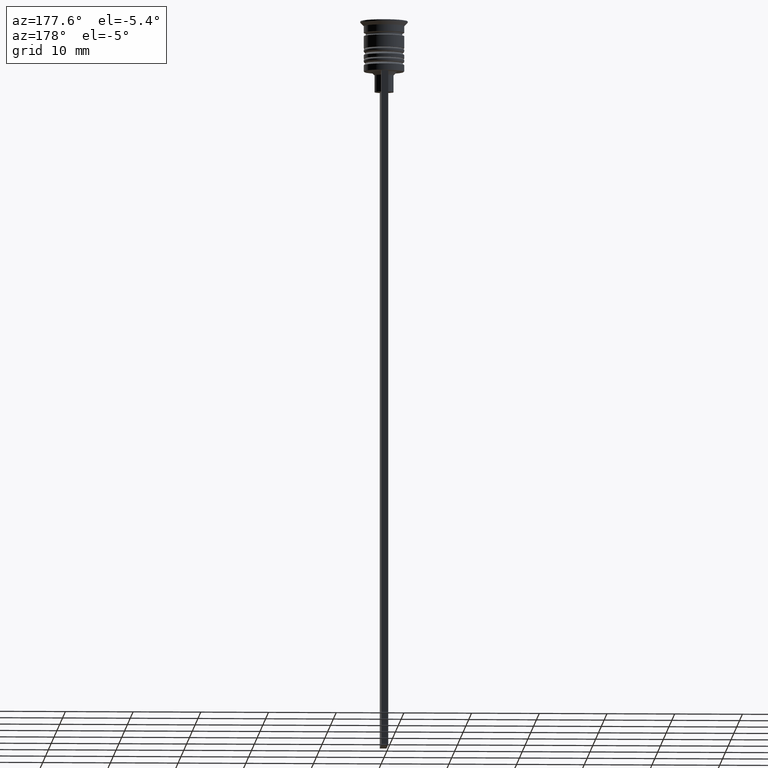
[diagram: clean part render]
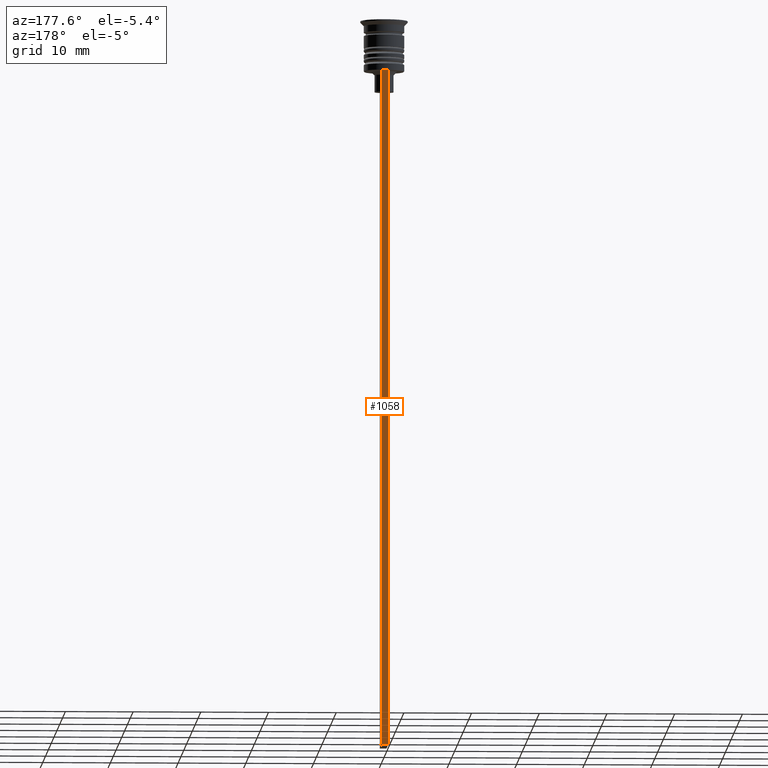
[diagram: same view with one face highlighted and labeled with its STEP entity id]
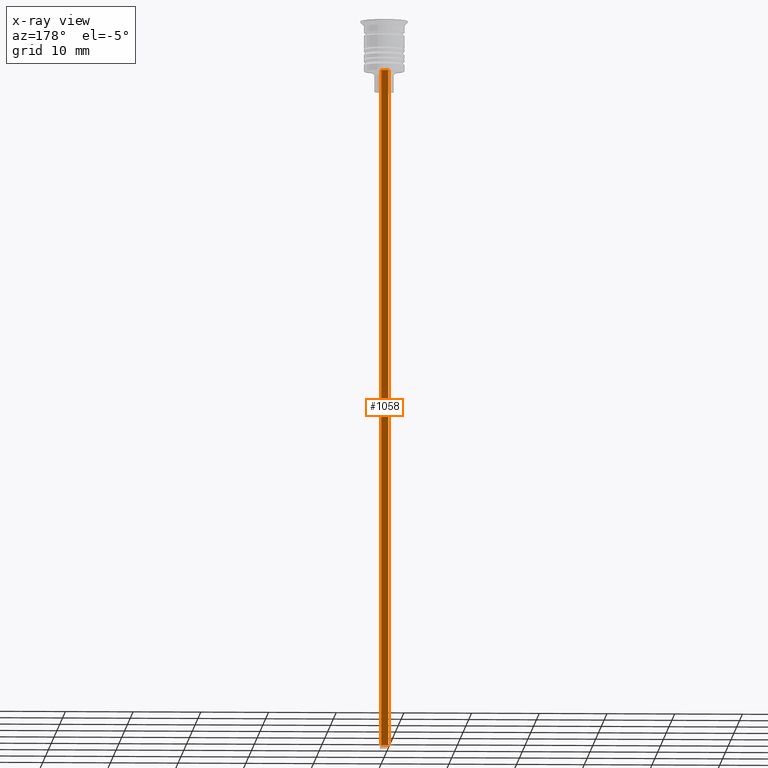
[diagram: x-ray of the same camera — body ghosted, the highlighted face saturated]
A machine part, auxiliary view. The second image highlights one B-rep face of the part: STEP entity #1058.
The next image is the same camera in x-ray: the body ghosted, the highlighted face saturated — about 0% of this face is hidden behind the body in this view.
In plain terms, the highlighted planar face has unit normal (0, -1, -0).
Its self-contained STEP definition (entity closure, byte-faithful):
#75 = CARTESIAN_POINT ( 'NONE',  ( 0.4999999999999998890, 3.000000000000000000, -1.417237469701779329 ) ) ;
#81 = EDGE_LOOP ( 'NONE', ( #487, #2272, #217, #443 ) ) ;
#90 = VECTOR ( 'NONE', #1664, 1000.000000000000000 ) ;
#115 = VERTEX_POINT ( 'NONE', #597 ) ;
#117 = CARTESIAN_POINT ( 'NONE',  ( 0.4999999999999998890, 3.000000000000000000, -7.500000000000000000 ) ) ;
#181 = CARTESIAN_POINT ( 'NONE',  ( 0.4999999999999998890, 3.000000000000000000, -1.417237469701779329 ) ) ;
#217 = ORIENTED_EDGE ( 'NONE', *, *, #867, .T. ) ;
#284 = VECTOR ( 'NONE', #697, 1000.000000000000000 ) ;
#443 = ORIENTED_EDGE ( 'NONE', *, *, #2100, .T. ) ;
#459 = VERTEX_POINT ( 'NONE', #1851 ) ;
#461 = CARTESIAN_POINT ( 'NONE',  ( -0.5000000000000001110, 3.000000000000000000, -1.417237469701779329 ) ) ;
#474 = AXIS2_PLACEMENT_3D ( 'NONE', #75, #1690, #794 ) ;
#476 = VERTEX_POINT ( 'NONE', #1294 ) ;
#487 = ORIENTED_EDGE ( 'NONE', *, *, #1502, .F. ) ;
#597 = CARTESIAN_POINT ( 'NONE',  ( 0.4999999999999998890, 3.000000000000000000, -107.5000000000000000 ) ) ;
#697 = DIRECTION ( 'NONE',  ( 1.000000000000000000, 0.000000000000000000, 0.000000000000000000 ) ) ;
#707 = EDGE_CURVE ( 'NONE', #1508, #476, #2260, .T. ) ;
#753 = CARTESIAN_POINT ( 'NONE',  ( 0.4999999999999998890, 3.000000000000000000, -107.5000000000000000 ) ) ;
#794 = DIRECTION ( 'NONE',  ( 0.000000000000000000, 0.000000000000000000, -1.000000000000000000 ) ) ;
#816 = FACE_OUTER_BOUND ( 'NONE', #81, .T. ) ;
#867 = EDGE_CURVE ( 'NONE', #476, #115, #1256, .T. ) ;
#977 = PLANE ( 'NONE',  #474 ) ;
#1058 = ADVANCED_FACE ( 'NONE', ( #816 ), #977, .F. ) ;
#1256 = LINE ( 'NONE', #181, #90 ) ;
#1294 = CARTESIAN_POINT ( 'NONE',  ( 0.4999999999999998890, 3.000000000000000000, -7.500000000000000000 ) ) ;
#1502 = EDGE_CURVE ( 'NONE', #1508, #459, #2073, .T. ) ;
#1508 = VERTEX_POINT ( 'NONE', #2063 ) ;
#1664 = DIRECTION ( 'NONE',  ( 0.000000000000000000, 0.000000000000000000, -1.000000000000000000 ) ) ;
#1681 = VECTOR ( 'NONE', #1926, 1000.000000000000000 ) ;
#1690 = DIRECTION ( 'NONE',  ( 0.000000000000000000, -1.000000000000000000, -0.000000000000000000 ) ) ;
#1851 = CARTESIAN_POINT ( 'NONE',  ( -0.5000000000000001110, 3.000000000000000000, -107.5000000000000000 ) ) ;
#1926 = DIRECTION ( 'NONE',  ( 0.000000000000000000, 0.000000000000000000, -1.000000000000000000 ) ) ;
#1991 = LINE ( 'NONE', #753, #2054 ) ;
#2010 = DIRECTION ( 'NONE',  ( -1.000000000000000000, 0.000000000000000000, 0.000000000000000000 ) ) ;
#2054 = VECTOR ( 'NONE', #2010, 1000.000000000000000 ) ;
#2063 = CARTESIAN_POINT ( 'NONE',  ( -0.5000000000000001110, 3.000000000000000000, -7.500000000000000000 ) ) ;
#2073 = LINE ( 'NONE', #461, #1681 ) ;
#2100 = EDGE_CURVE ( 'NONE', #115, #459, #1991, .T. ) ;
#2260 = LINE ( 'NONE', #117, #284 ) ;
#2272 = ORIENTED_EDGE ( 'NONE', *, *, #707, .T. ) ;